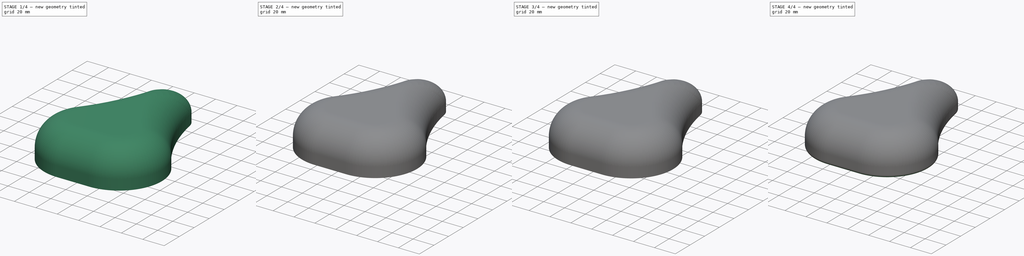
[diagram: build sequence overview — one tinted view per stage of 4, left to right]
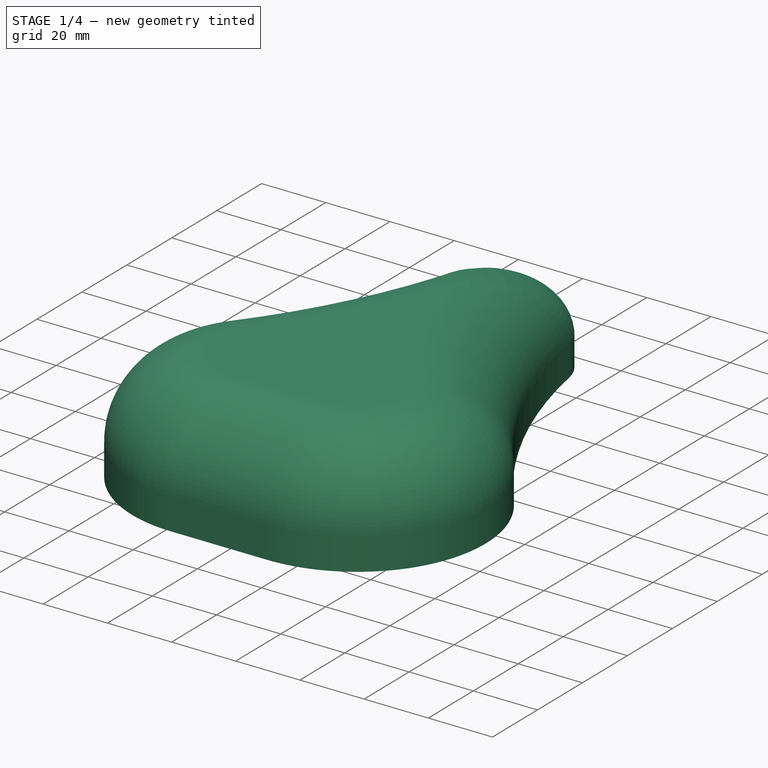
[diagram: stage 1 of 4 — iso view after this stage's code; geometry added in this stage tinted green]
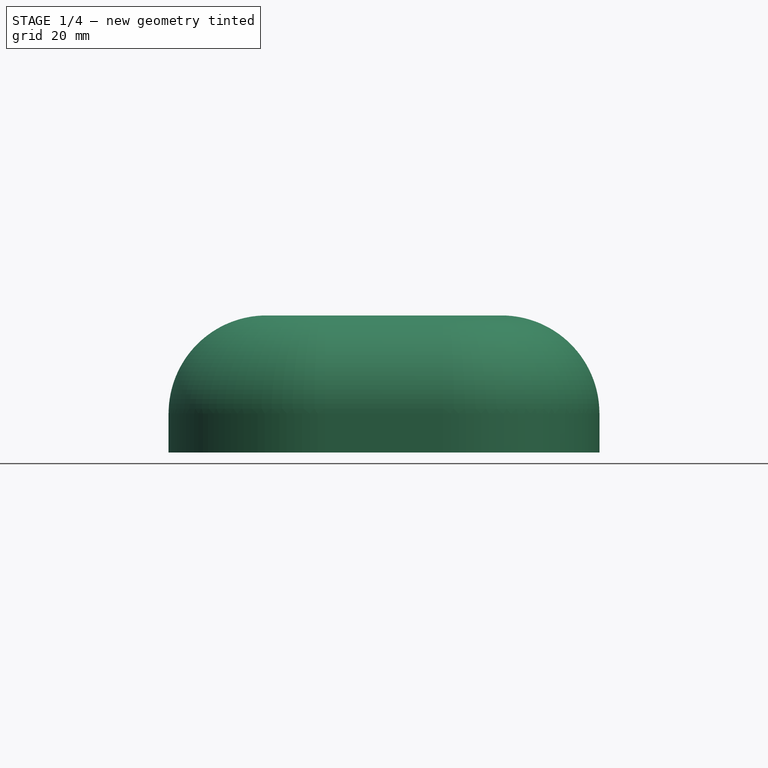
[diagram: stage 1 of 4 — front view after this stage's code; geometry added in this stage tinted green]
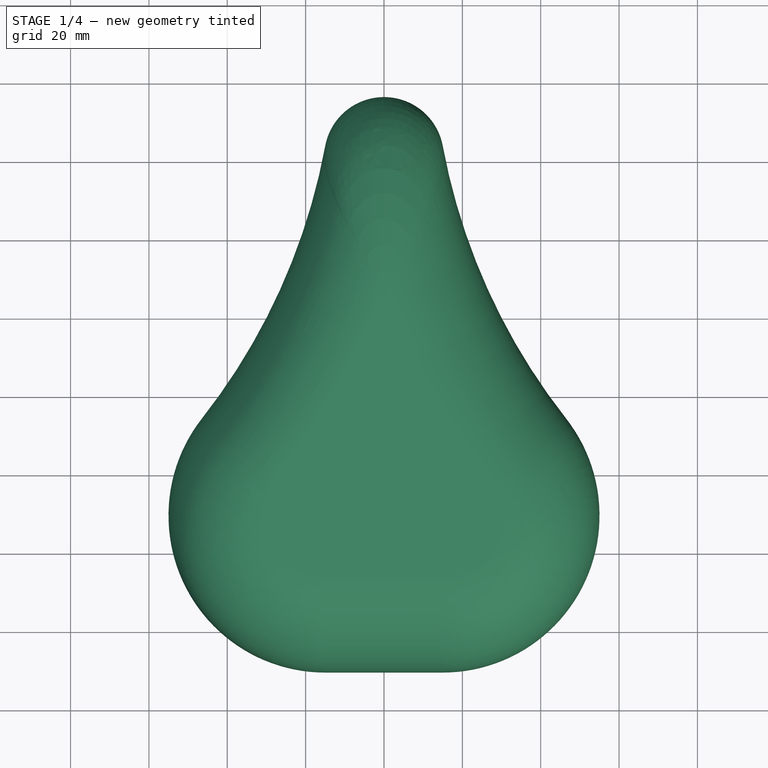
[diagram: stage 1 of 4 — top view after this stage's code; geometry added in this stage tinted green]
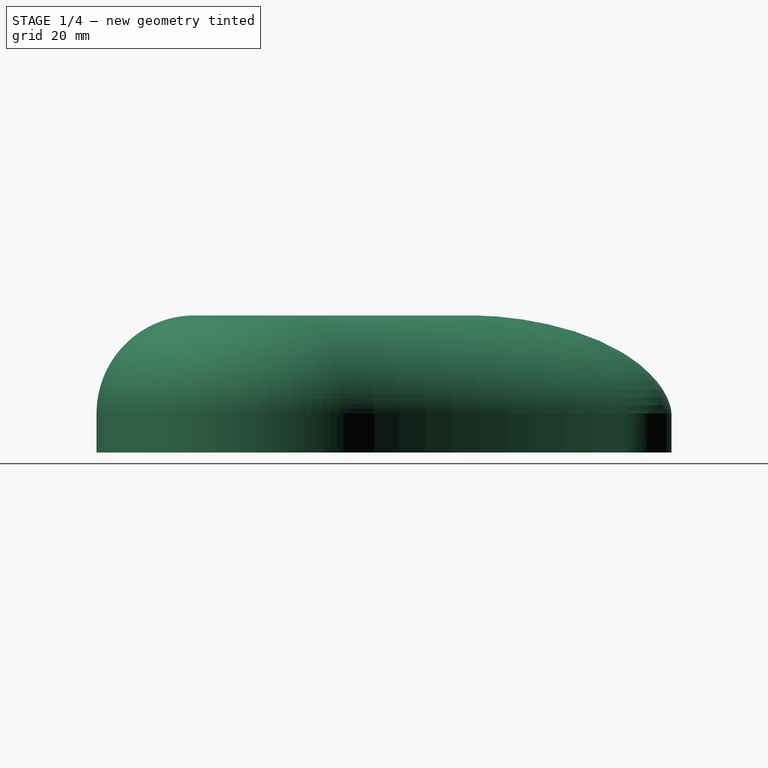
[diagram: stage 1 of 4 — right view after this stage's code; geometry added in this stage tinted green]
FCSTD DOCUMENT  (FreeCAD 0.16R)
Label: Seat2
License: All rights reserved
LicenseURL: http://en.wikipedia.org/wiki/All_rights_reserved
objects: Sketcher::SketchObject×5, PartDesign::Fillet×5, PartDesign::Pad×3, PartDesign::Pocket×2
note: 20 computed .brp shape members not serialized (recipe doc carries the construction recipe); baked Part::Feature solids carry a one-line shape summary decoded from their .brp

FEATURE [Sketcher::SketchObject] Sketch
  sketch-geometry (6):
    g0: ArcOfCircle CenterX=0 CenterY=61.212 CenterZ=0 NormalX=0 NormalY=0 NormalZ=1 Radius=15.2569 StartAngle=0.18377 EndAngle=2.95782
    g1: ArcOfCircle CenterX=-15 CenterY=-30.2722 CenterZ=0 NormalX=0 NormalY=0 NormalZ=1 Radius=40 StartAngle=2.47596 EndAngle=4.71239
    g2: ArcOfCircle CenterX=15 CenterY=-30.2722 CenterZ=0 NormalX=0 NormalY=0 NormalZ=1 Radius=40 StartAngle=4.71239 EndAngle=6.94881
    g3: LineSegment StartX=-15 StartY=-70.2722 StartZ=0 EndX=15 EndY=-70.2722 EndZ=0
    g4: ArcOfCircle CenterX=-172.306 CenterY=93.2385 CenterZ=0 NormalX=0 NormalY=0 NormalZ=1 Radius=160 StartAngle=5.61756 EndAngle=6.09941
    g5: ArcOfCircle CenterX=172.306 CenterY=93.2385 CenterZ=0 NormalX=0 NormalY=0 NormalZ=1 Radius=160 StartAngle=3.32537 EndAngle=3.80722
  constraints (22):
    c: Radius(g2) = 40
    c: Radius(g1) = 40
    c: Horizontal(g3)
    c: Coincident(g3,g2)
    c: Coincident(g1,g3)
    c: Coincident(g5,g0)
    c: Coincident(g4,g0)
    c: Coincident(g2,g5)
    c: Coincident(g1,g4)
    c: Radius(g5) = 160
    c: Radius(g4) = 160
    c: DistanceX(g0) = 15
    c: DistanceX(g0) = -15
    c: Symmetric(g2,g1,g-2)
    c: Symmetric(g2,g1,g-2)
    c: DistanceY(g-1,g0) = 64
    c: Distance(g3) = 30
    c: DistanceX(g1,g-1) = 15
    c: Symmetric(g0,g0,g-2)
    c: Tangent(g5,g0)
    c: Tangent(g2,g5)
    c: Tangent(g3,g1)
FEATURE [PartDesign::Pad] Pad
  Length = 35
  Length2 = 100
  Sketch = -> Sketch
  Type = 0
FEATURE [PartDesign::Fillet] Fillet
  Base = -> Pad [Edge4]
  Radius = 25
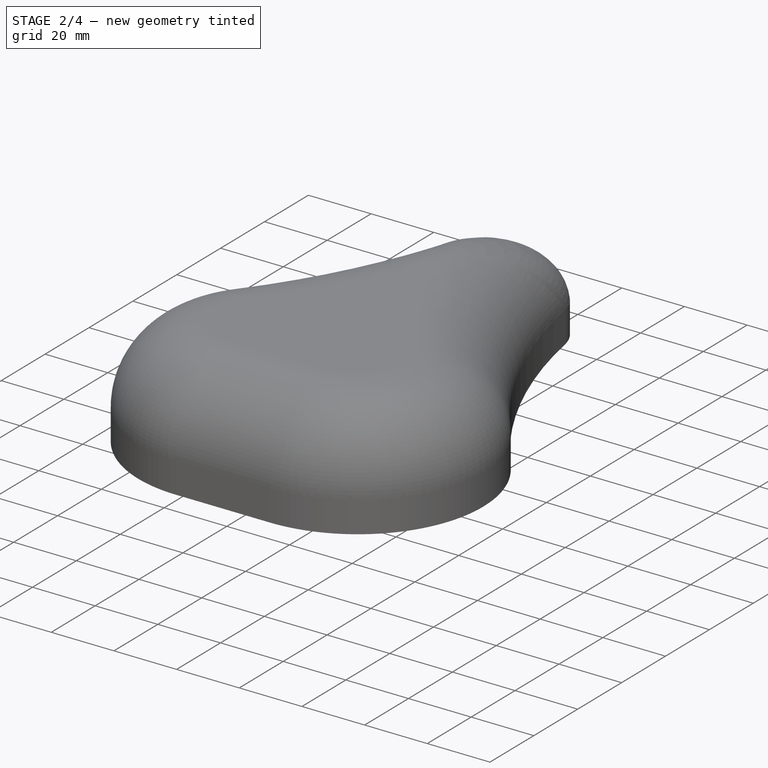
[diagram: stage 2 of 4 — iso view after this stage's code; geometry added in this stage tinted green]
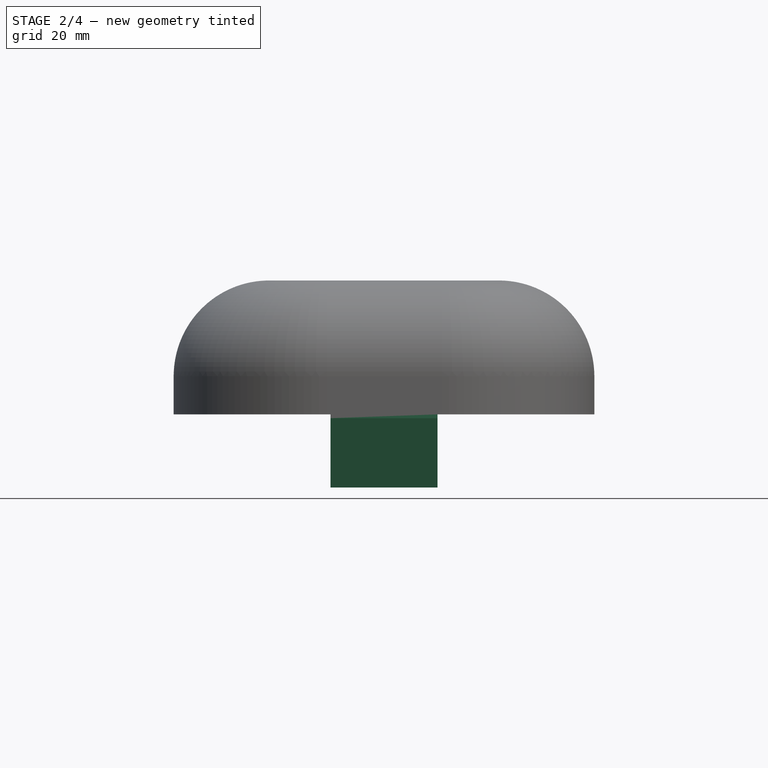
[diagram: stage 2 of 4 — front view after this stage's code; geometry added in this stage tinted green]
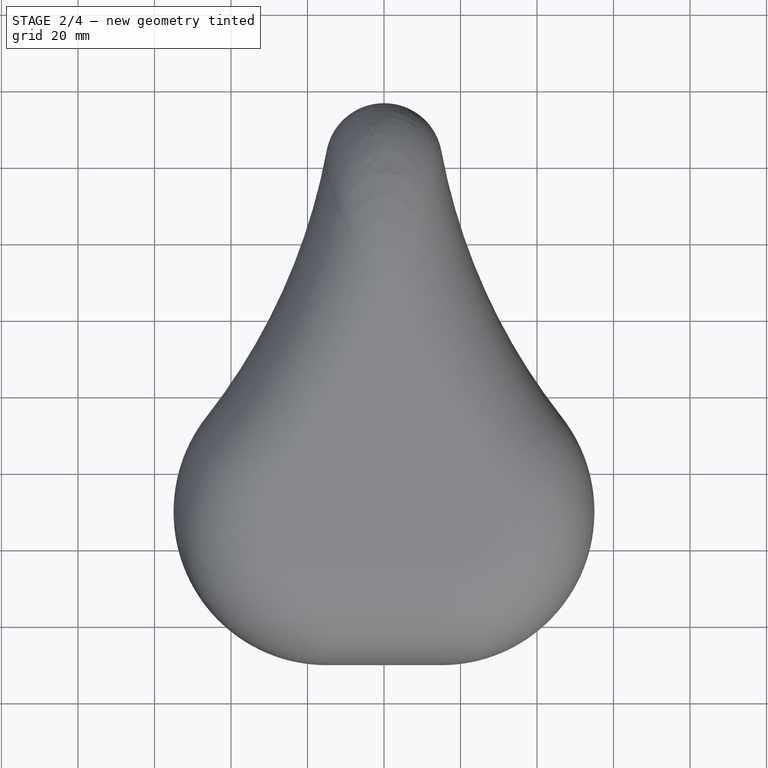
[diagram: stage 2 of 4 — top view after this stage's code; geometry added in this stage tinted green]
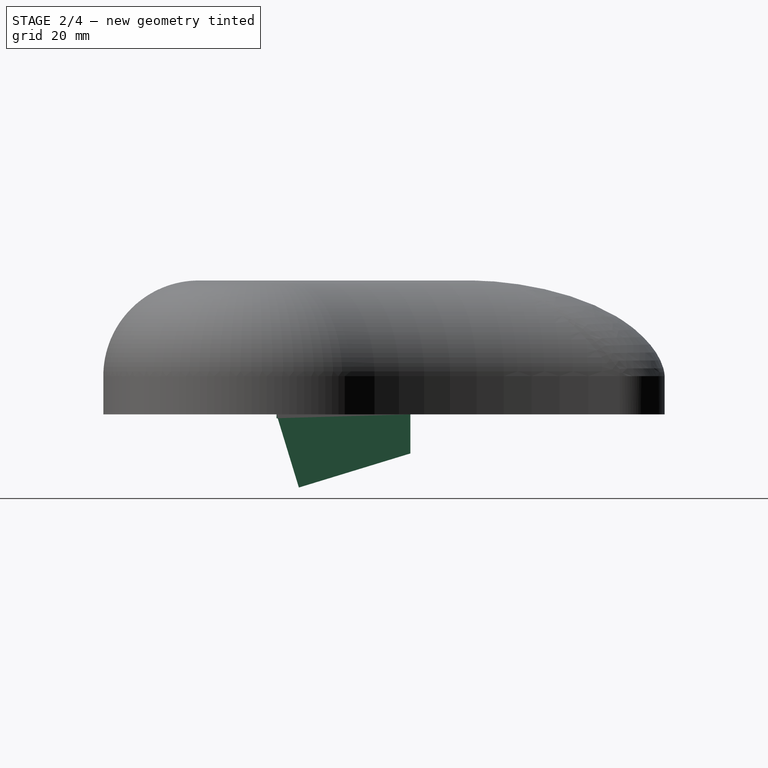
[diagram: stage 2 of 4 — right view after this stage's code; geometry added in this stage tinted green]
FEATURE [Sketcher::SketchObject] Sketch001
  Placement = pos=(0,0,0) rot=(1,0,0;3.14159rad)
  Support = -> Fillet [Face4]
  sketch-geometry (4):
    g0: LineSegment StartX=-14 StartY=25 StartZ=0 EndX=14 EndY=25 EndZ=0
    g1: LineSegment StartX=14 StartY=25 StartZ=0 EndX=14 EndY=-10 EndZ=0
    g2: LineSegment StartX=14 StartY=-10 StartZ=0 EndX=-14 EndY=-10 EndZ=0
    g3: LineSegment StartX=-14 StartY=-10 StartZ=0 EndX=-14 EndY=25 EndZ=0
  constraints (12):
    c: Coincident(g0,g1)
    c: Coincident(g1,g2)
    c: Coincident(g2,g3)
    c: Coincident(g3,g0)
    c: Horizontal(g0)
    c: Horizontal(g2)
    c: Vertical(g1)
    c: Vertical(g3)
    c: Symmetric(g0,g0,g-2)
    c: DistanceY(g-1,g1) = -10
    c: DistanceY(g1,g1) = 35
    c: DistanceX(g0,g0) = 28
FEATURE [PartDesign::Pad] Pad001
  Length = 1
  Length2 = 100
  Sketch = -> Sketch001
  Type = 0
FEATURE [Sketcher::SketchObject] Sketch002
  ExternalGeometry = -> [Pad001]
  Placement = pos=(14,0,0) rot=(0.57735,0.57735,0.57735;2.0944rad)
  Support = -> Pad001 [Face3]
  sketch-geometry (4):
    g0: LineSegment StartX=-25 StartY=0 StartZ=0 EndX=-19.1526 EndY=-19.1261 EndZ=0
    g1: LineSegment StartX=10 StartY=0 StartZ=0 EndX=-25 EndY=0 EndZ=0
    g2: LineSegment StartX=10 StartY=0 StartZ=0 EndX=10 EndY=-10.2133 EndZ=0
    g3: LineSegment StartX=-19.1526 StartY=-19.1261 StartZ=0 EndX=10 EndY=-10.2133 EndZ=0
  constraints (11):
    c: Horizontal(g1)
    c: Coincident(g0,g-6)
    c: Vertical(g2)
    c: Angle(g3) = 0.296706
    c: Coincident(g2,g1)
    c: Coincident(g2,g3)
    c: Coincident(g1,g-5)
    c: Coincident(g3,g0)
    c: Perpendicular(g0,g3)
    c: Distance(g0) = 20
    c: DistanceX(g1,g1) = 35
FEATURE [PartDesign::Pad] Pad002
  Length = 28
  Length2 = 100
  Reversed = true
  Sketch = -> Sketch002
  Type = 0
FEATURE [Sketcher::SketchObject] Sketch004
  ExternalGeometry = -> [Pad002]
  Placement = pos=(0,3.7104,-12.1362) rot=(1,0,0;3.4383rad)
  Support = -> Pad002 [Face25]
  sketch-geometry (1):
    g0: Circle CenterX=0 CenterY=8.66532 CenterZ=0 NormalX=0 NormalY=0 NormalZ=1 Radius=9.55
  constraints (2):
    c: Radius(g0) = 9.55
    c: Symmetric(g-3,g-4,g0)
FEATURE [PartDesign::Pocket] Pocket
  Length = 35
  Sketch = -> Sketch004
  Type = 0
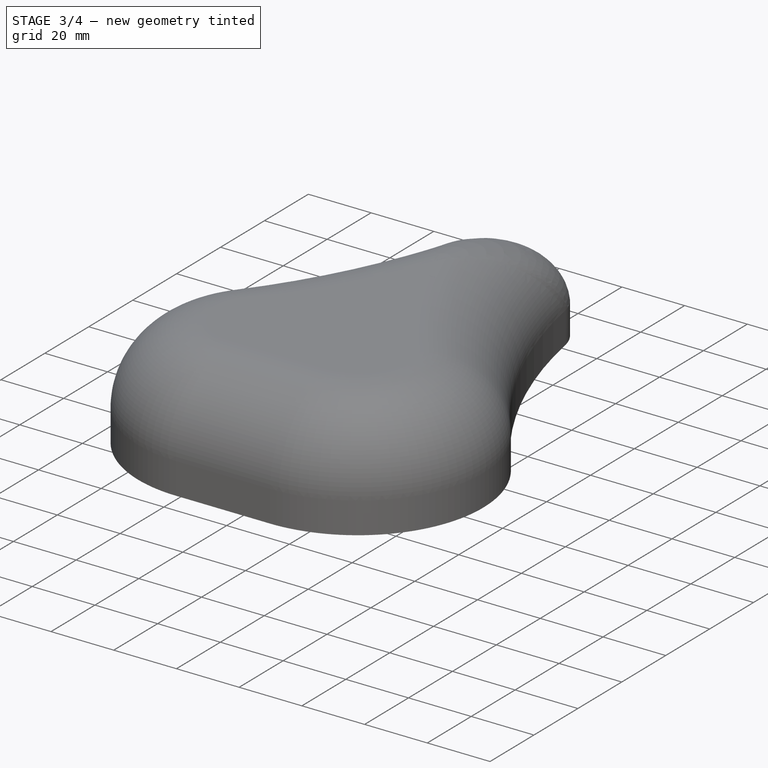
[diagram: stage 3 of 4 — iso view after this stage's code; geometry added in this stage tinted green]
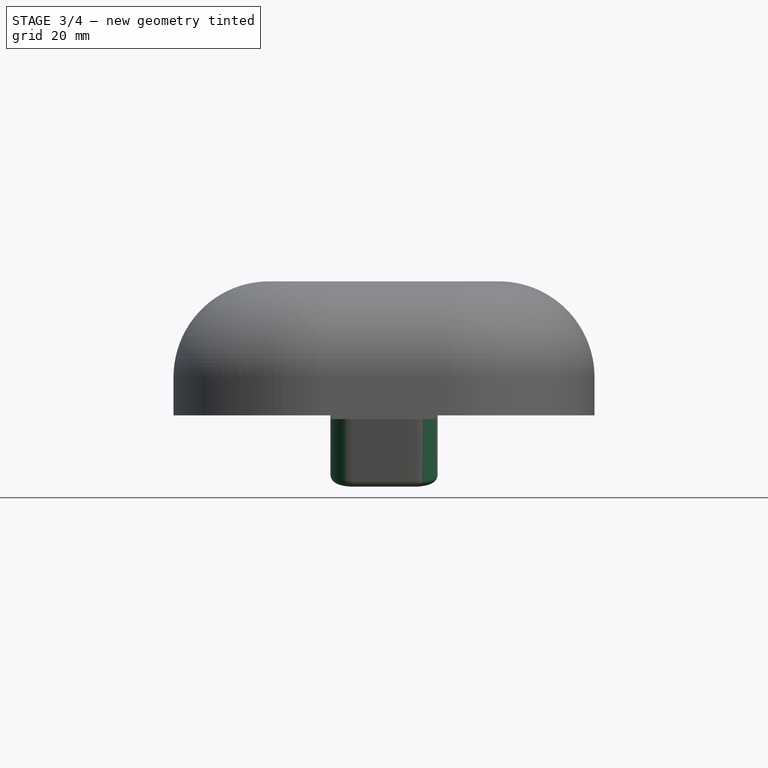
[diagram: stage 3 of 4 — front view after this stage's code; geometry added in this stage tinted green]
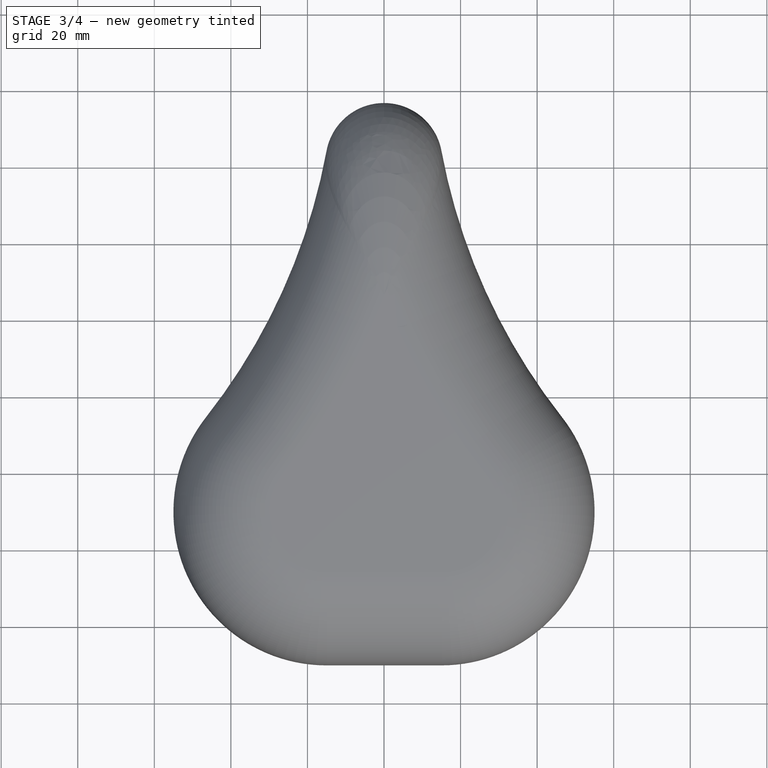
[diagram: stage 3 of 4 — top view after this stage's code; geometry added in this stage tinted green]
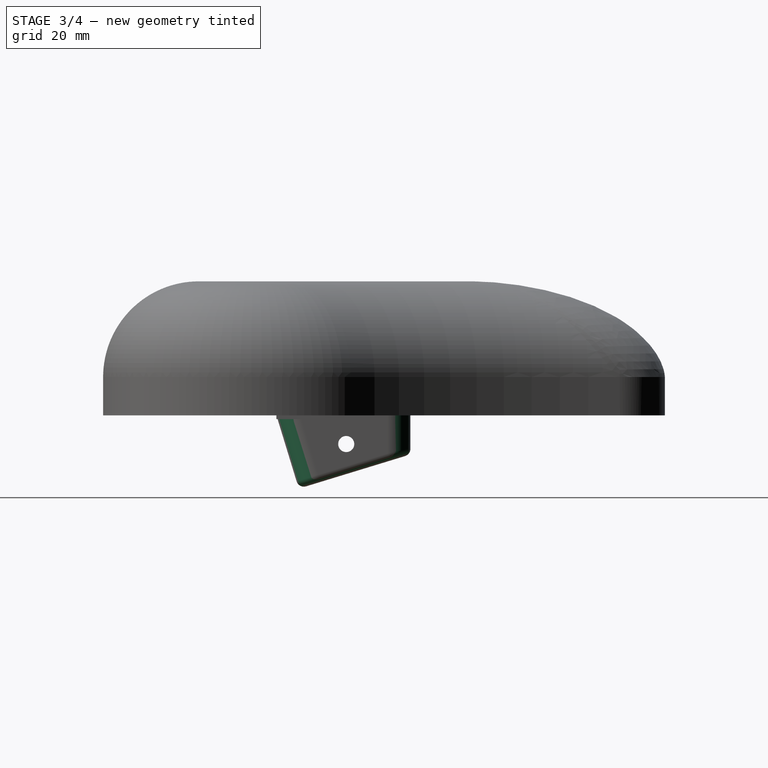
[diagram: stage 3 of 4 — right view after this stage's code; geometry added in this stage tinted green]
FEATURE [Sketcher::SketchObject] Sketch005
  ExternalGeometry = -> [Pocket]
  Placement = pos=(14,0,0) rot=(0.57735,0.57735,0.57735;2.0944rad)
  Support = -> Pocket [Face20]
  sketch-geometry (1):
    g0: Circle CenterX=-6.76907 CenterY=-7.49739 CenterZ=0 NormalX=0 NormalY=0 NormalZ=1 Radius=2.1
  constraints (3):
    c: Radius(g0) = 2.1
    c: PointOnObject(g0,g-3)
    c: Distance(g0,g-3) = 7.5
FEATURE [PartDesign::Pocket] Pocket001
  Length = 5
  Sketch = -> Sketch005
  Type = 1
FEATURE [PartDesign::Fillet] Fillet001
  Base = -> Pocket001 [Edge45,Edge47,Edge53,Edge48]
  Radius = 6
FEATURE [PartDesign::Fillet] Fillet002
  Base = -> Fillet001 [Edge50]
  Radius = 2
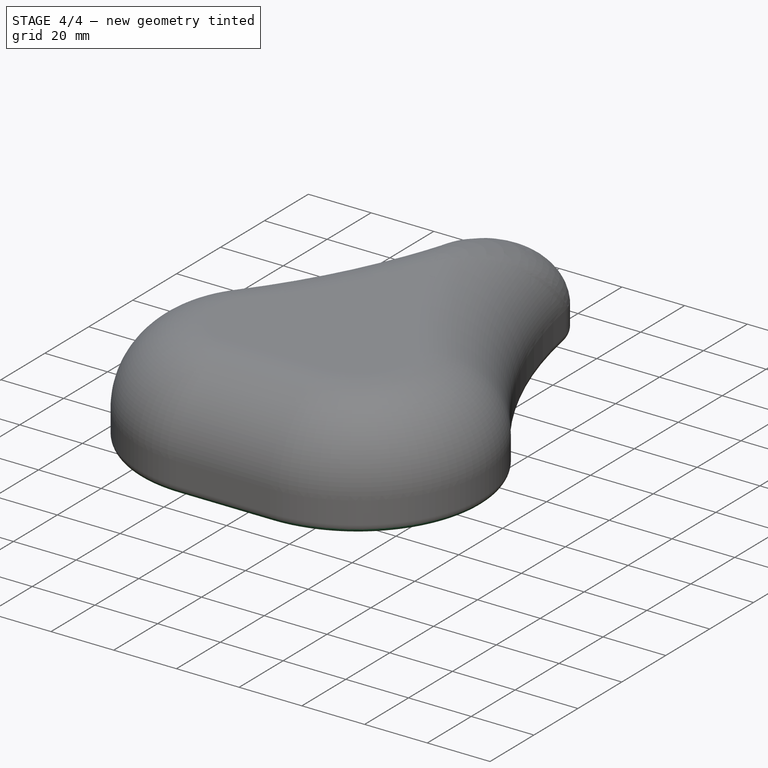
[diagram: stage 4 of 4 — iso view after this stage's code; geometry added in this stage tinted green]
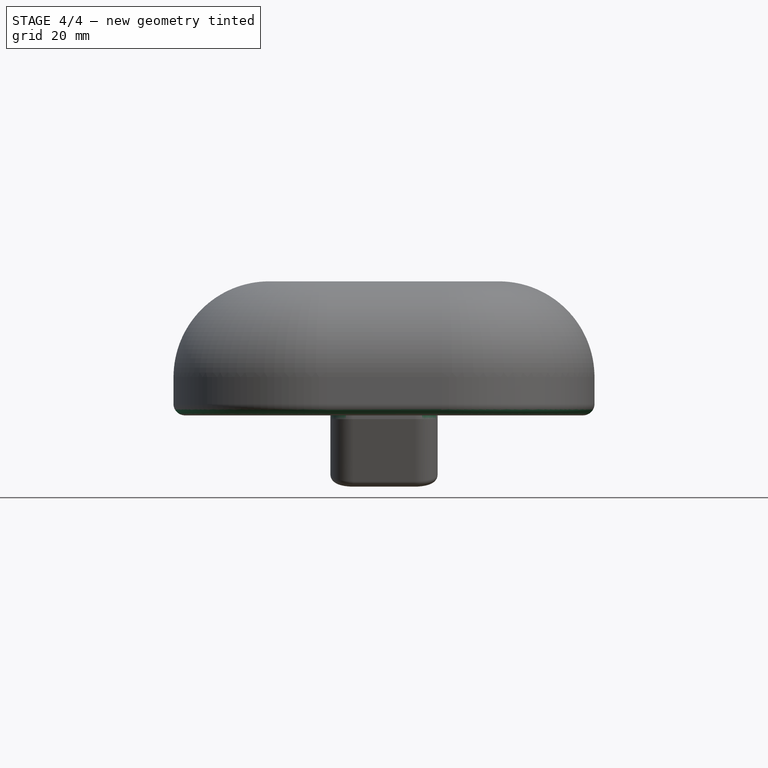
[diagram: stage 4 of 4 — front view after this stage's code; geometry added in this stage tinted green]
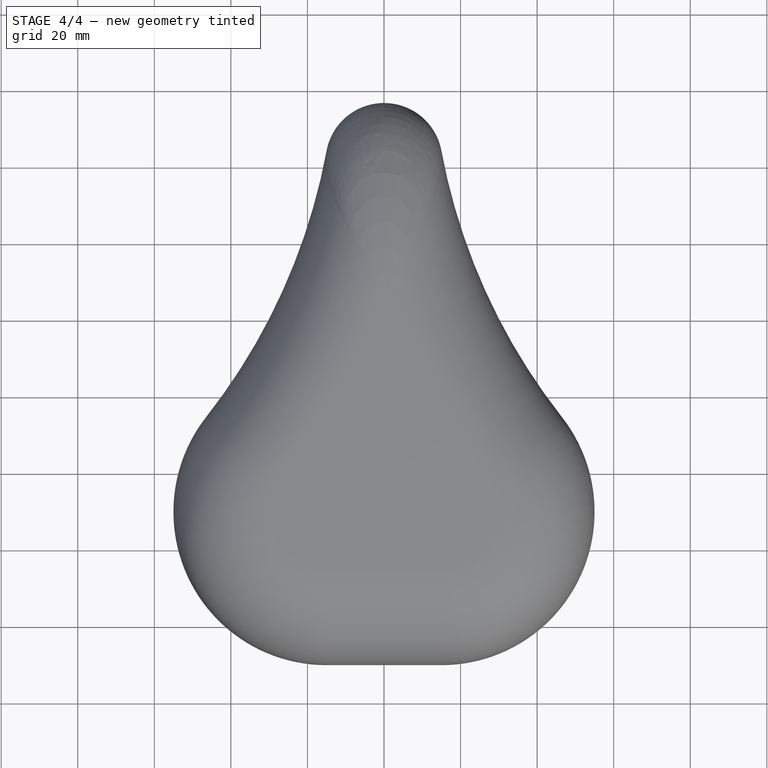
[diagram: stage 4 of 4 — top view after this stage's code; geometry added in this stage tinted green]
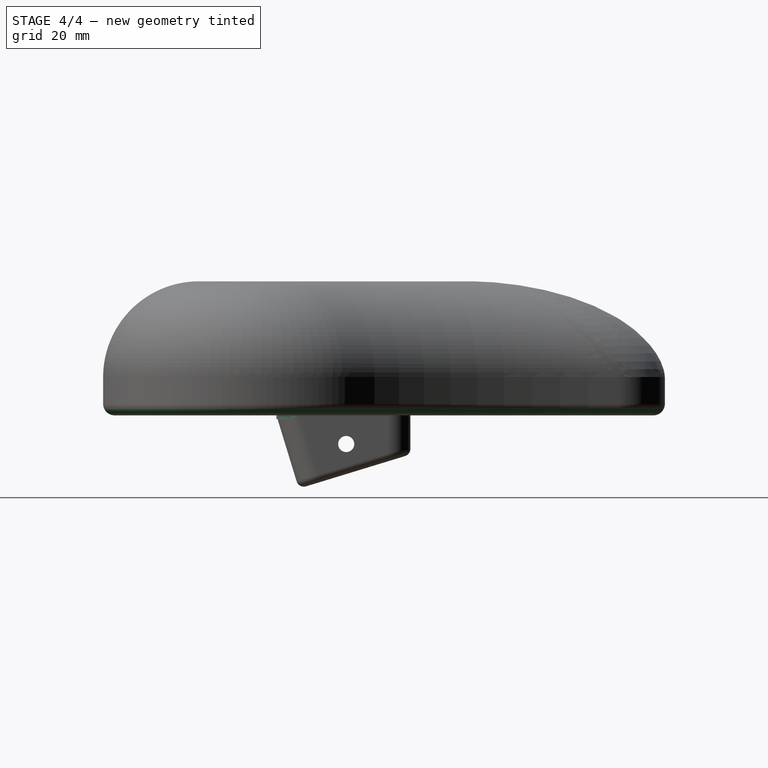
[diagram: stage 4 of 4 — right view after this stage's code; geometry added in this stage tinted green]
FEATURE [PartDesign::Fillet] Fillet003
  Base = -> Fillet002 [Edge38]
  Radius = 3
FEATURE [PartDesign::Fillet] Fillet004
  Base = -> Fillet003 [Edge38,Edge40]
  Radius = 6
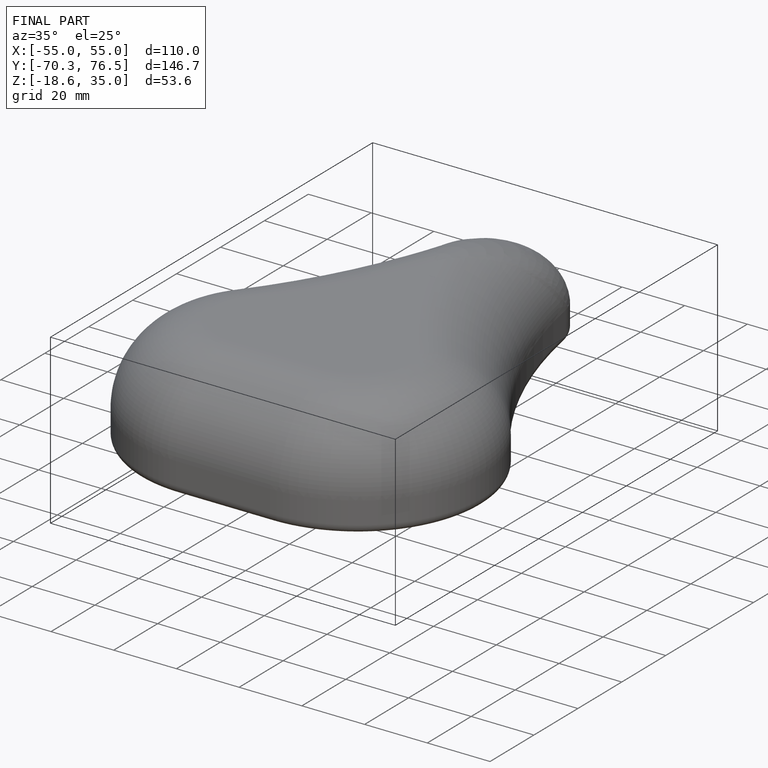
[diagram: finished part — iso view with bounding-box wireframe]
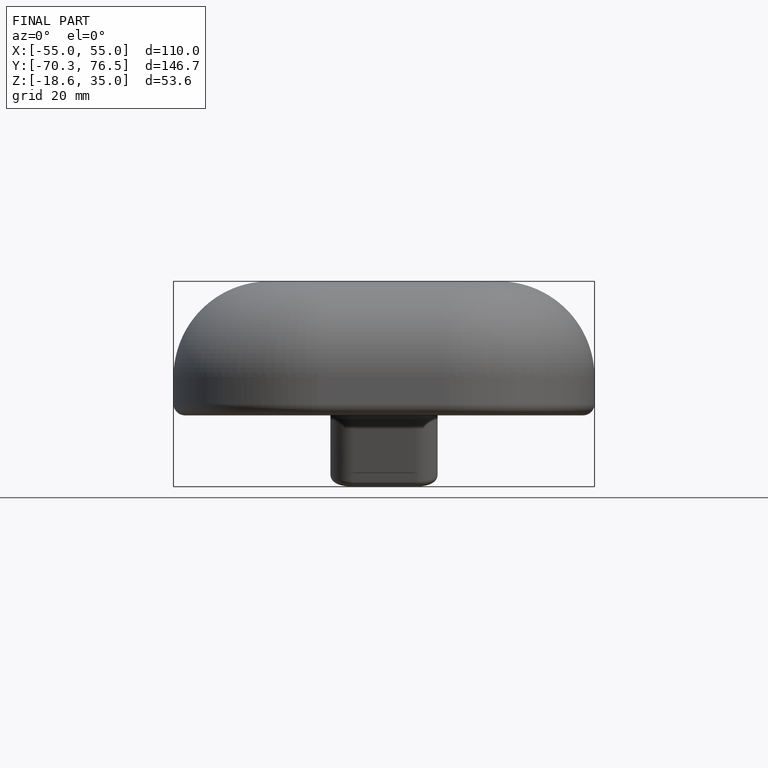
[diagram: finished part — front view with bounding-box wireframe]
